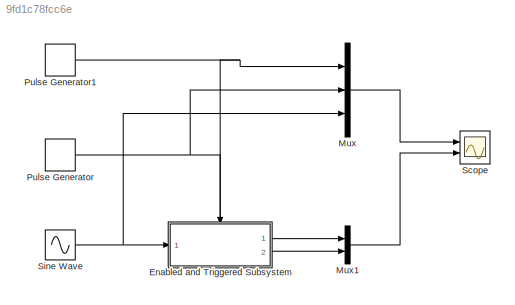
MODEL slx_9fd1c78fcc6e
KIND model
CONFIG AbsTol = auto
CONFIG FixedStep = 0.25
CONFIG MaxStep = auto
CONFIG MinStep = auto
CONFIG PreLoadFcn = loadvar
CONFIG RelTol = 1e-3
CONFIG SampleTimeConstraint = Unconstrained
CONFIG Solver = FixedStepAuto
CONFIG SolverMode = Auto
CONFIG SolverName = FixedStepAuto
CONFIG StartFcn = open_scope
CONFIG StartTime = 0.0
CONFIG StopTime = 10.0
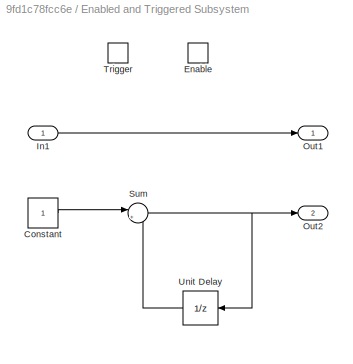
BLOCK [SubSystem] Enabled and Triggered Subsystem
  DeleteFcn = msgbox('This block is being deleted!')
  OpenFcn = loadvar
  Ports = [1, 2, 1, 1]
  RequestExecContextInheritance = off
  TreatAsAtomicUnit = on
  Variant = off
BLOCK [Constant] Enabled and Triggered Subsystem/Constant
BLOCK [EnablePort] Enabled and Triggered Subsystem/Enable
  Ports = []
BLOCK [Inport] Enabled and Triggered Subsystem/In1
  IconDisplay = Port number
BLOCK [Outport] Enabled and Triggered Subsystem/Out1
  IconDisplay = Port number
  InitialOutput = 0
BLOCK [Outport] Enabled and Triggered Subsystem/Out2
  IconDisplay = Port number
  InitialOutput = 0
  Port = 2
BLOCK [Sum] Enabled and Triggered Subsystem/Sum
  IconShape = round
  InputSameDT = off
  Inputs = |++
  OutDataTypeStr = Inherit: Inherit via internal rule
  Ports = [2, 1]
  SaturateOnIntegerOverflow = off
BLOCK [TriggerPort] Enabled and Triggered Subsystem/Trigger
  Ports = []
  StatesWhenEnabling = held
BLOCK [UnitDelay] Enabled and Triggered Subsystem/Unit Delay
  InputProcessing = Elements as channels (sample based)
  SampleTime = -1
BLOCK [Mux] Mux
  DisplayOption = bar
  Inputs = 3
  Ports = [3, 1]
BLOCK [Mux] Mux1
  DisplayOption = bar
  Inputs = 2
  Ports = [2, 1]
BLOCK [DiscretePulseGenerator] Pulse Generator
  Period = 20
  Ports = [0, 1]
  PulseWidth = 10
  SampleTime = 0.25
BLOCK [DiscretePulseGenerator] Pulse Generator1
  Ports = [0, 1]
  SampleTime = 0.25
BLOCK [Scope] Scope
  NumInputPorts = 2
  Ports = [2]
  ScopeSpecificationString = Simulink.scopes.TimeScopeBlockCfg('CurrentConfiguration', extmgr.ConfigurationSet(extmgr.Configuration('Core','General UI',true),extmgr.Configuration('Core','Source UI',true),extmgr.Configuration('Sources','WiredSimulink',true,'SampleTime','0.25'),extmgr.Configuration('Visuals','Time Domain',true,'SerializedDisplays',{struct('MinYLimReal','-1.00000','MaxYLimReal','1.00000','YLabelReal','','MinYLim...<+2092ch>
BLOCK [Sin] Sine Wave
  Ports = [0, 1]
  SampleTime = 0.25
  Samples = 20
  SineType = Sample based
LINE Enabled and Triggered Subsystem/Constant:1 -> Enabled and Triggered Subsystem/Sum:1
LINE Enabled and Triggered Subsystem/In1:1 -> Enabled and Triggered Subsystem/Out1:1
NET Enabled and Triggered Subsystem/Sum:1 -> Enabled and Triggered Subsystem/Out2:1, Enabled and Triggered Subsystem/Unit Delay:1
LINE Enabled and Triggered Subsystem/Unit Delay:1 -> Enabled and Triggered Subsystem/Sum:2
LINE Enabled and Triggered Subsystem:1 -> Mux1:1
LINE Enabled and Triggered Subsystem:2 -> Mux1:2
LINE Mux1:1 -> Scope:2
LINE Mux:1 -> Scope:1
NET Pulse Generator1:1 -> Enabled and Triggered Subsystem:trigger, Mux:1
NET Pulse Generator:1 -> Enabled and Triggered Subsystem:enable, Mux:2
NET Sine Wave:1 -> Enabled and Triggered Subsystem:1, Mux:3
note: NET lines group one-source signal fan-out (src -> all destinations, sorted); 1:1 wires keep LINE
